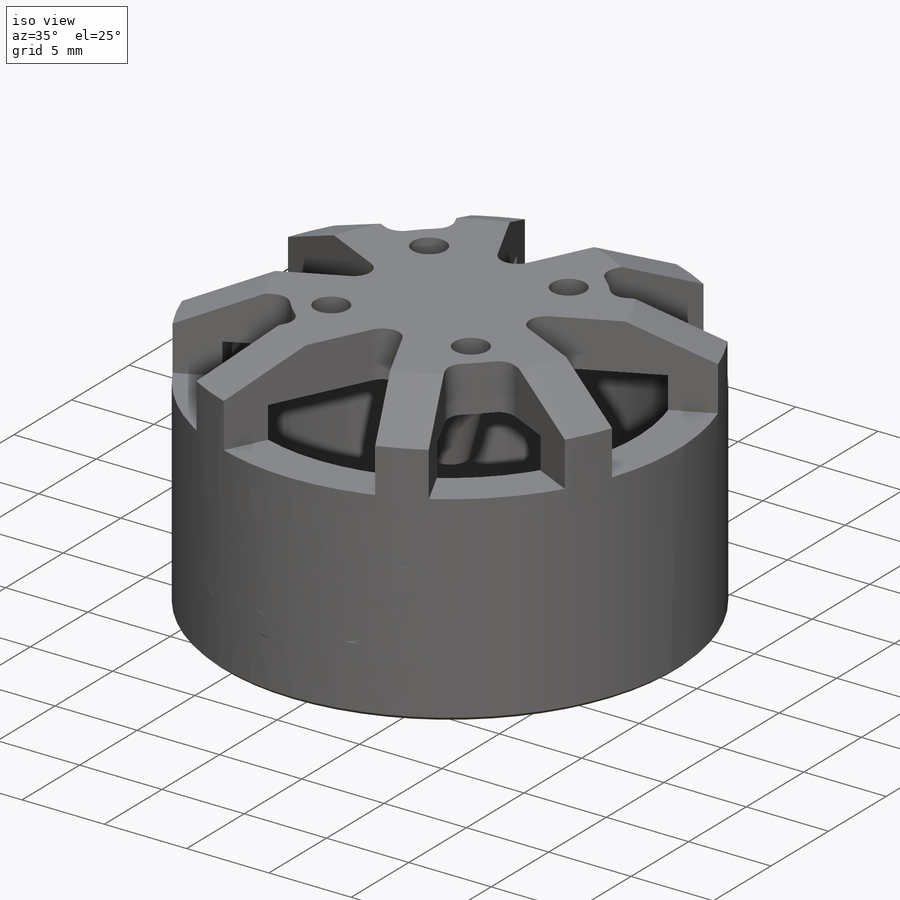
[diagram: iso view]
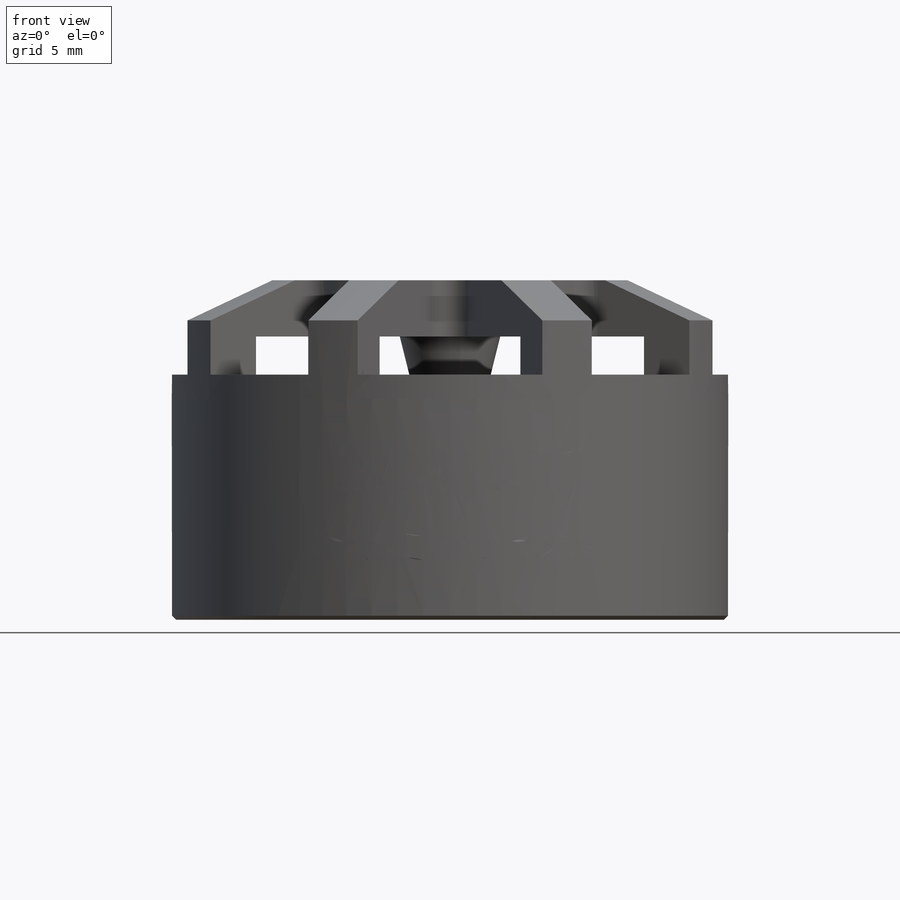
[diagram: front view]
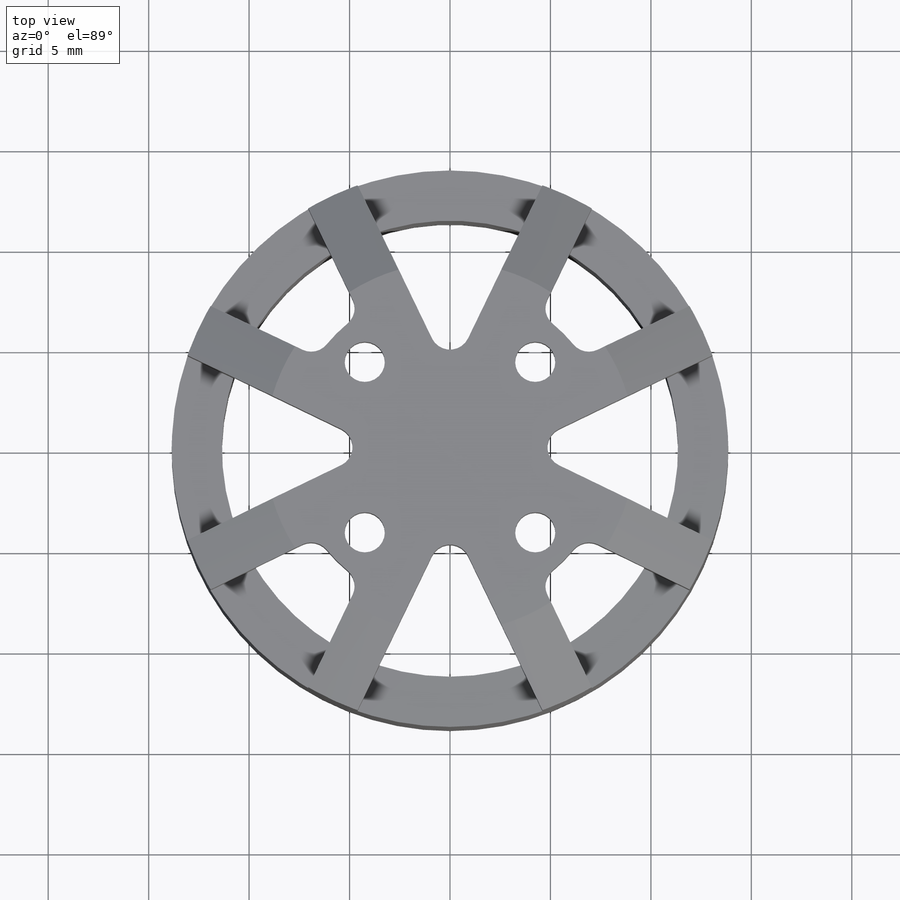
[diagram: top view]
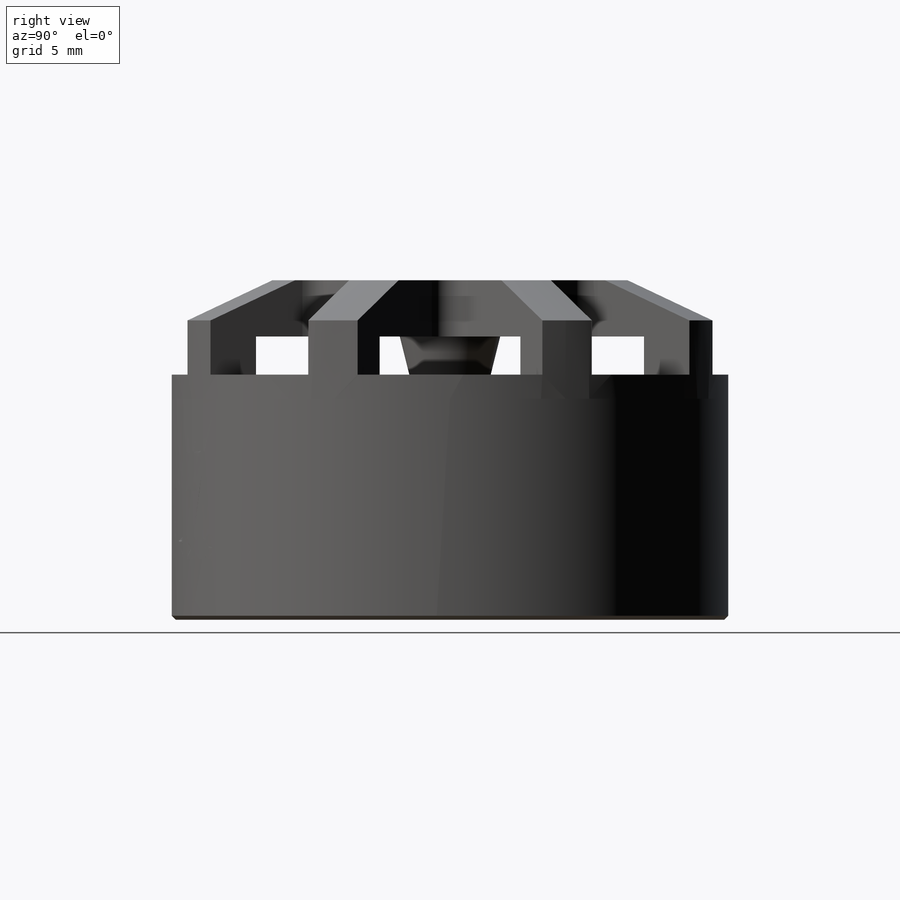
[diagram: right view]
SOLIDWORKS PART (.sldprt)
format: sldprt  version: not decoded by parser v0  size: 902,656 bytes
history: native  units: mm
features: sketch x6, material x1, revolve x1, cut_extrude x1, hole x1, fillet x1, pattern_circular x1, chamfer x1 + 2 further entries (+13 scaffold rows collapsed)
feature tree (28):
  scaffold x13  (default folders/planes/origin — collapsed)
  material  "Al 6061-T6"
  "X Axis"
  "Y Axis"
  sketch  "Sketch1"  dims[c1.D1=25.0mm c1.D2=27.7mm c1.D3=8.0mm c1.D4=18.0mm c1.D5=1.5mm c1.D6=22.6mm c1.D7=5.55mm c1.D8=6.8mm c1.D9=24.0mm c1.D10=3.5mm c1.D11=~6.828837mm c2.D10=25.0mm c2.D11=3.5mm c2.D12=2.8mm c2.D13=2.7mm c2.D14=5.0mm c2.D15=5.0mm c2.D16=2.0mm c2.D17=6.0mm c2.D18=2.5mm c2.D19=~13.706192mm c3.D19=25.0deg c3.D20=5.0mm c3.D21=10.5mm c3.D22=0.6mm c3.D23=7.7mm c3.D24=16.5mm c3.D10=16.9mm c3.D6=2.0mm c3.D4=0.9mm c3.D7=2.5mm c3.D8=0.45mm c3.D9=3.8mm c4.D4=0.9mm c4.D9=18.4mm]
  revolve  "Revolve1"  Angle=360deg
  sketch  "Sketch2"  dims[c1.D1=4.5mm c1.D5=2.0mm c1.D2=~3.85299mm c2.D2=120.0deg c2.D3=11.3mm c3.D3=45.0deg c3.D4=~3.703638mm c3.D2=2.0mm c4.D4=9.2mm c4.D1=9.0mm c4.D6=7.5mm c4.D7=3.0mm]
  cut_extrude  "Cut-Extrude1"  Depth=4.7mm
  hole  "M2x0.4 Tapped Hole2"  Diameter=2mm Depth=2.8mm
  sketch  "Sketch8"  dims[c1.D1=13.85mm c2.D1=45.0deg c2.D2=~6.760987mm c3.D2=6.0mm]
  sketch  "Sketch7"  dims[hole-wizard template sketch: 59 standard entries collapsed; hole parameters kept: c18.Thread Major Dia.=2.0mm c18.Thru Tap Drill Depth=2.8mm]
  fillet  "Fillet2"  Radius=1mm
  pattern_circular  "CirPattern1"  Count=4 Angle=360deg
  chamfer  "Chamfer1"  Distance=0.2mm Angle=45deg
  sketch  "Sketch11"  dims[D1=11.0mm]
  sketch  "Sketch12"  dims[D1=16.0mm]
decode coverage: 12 of 12 modeling features carry decoded parameters; 2 rows unclassified (native names shown)
note: ~ marks probable driven/reference dimensions
note: suppression state not decoded; provenance and decode notes live in map.json
